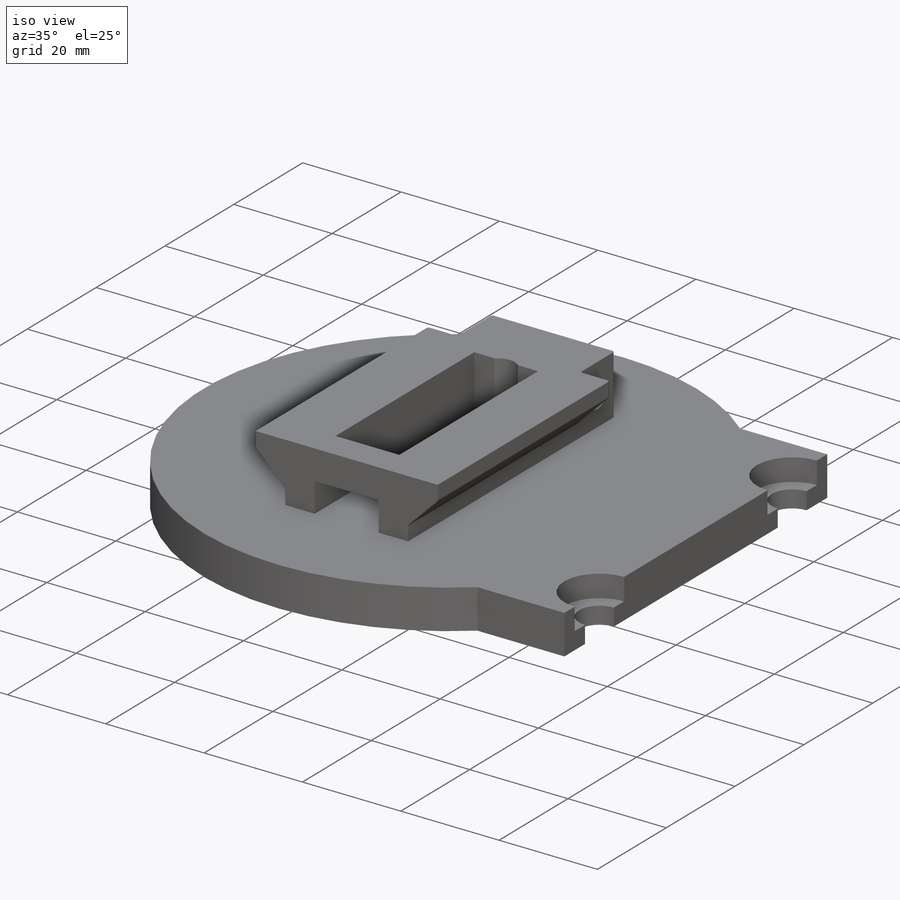
[diagram: iso view]
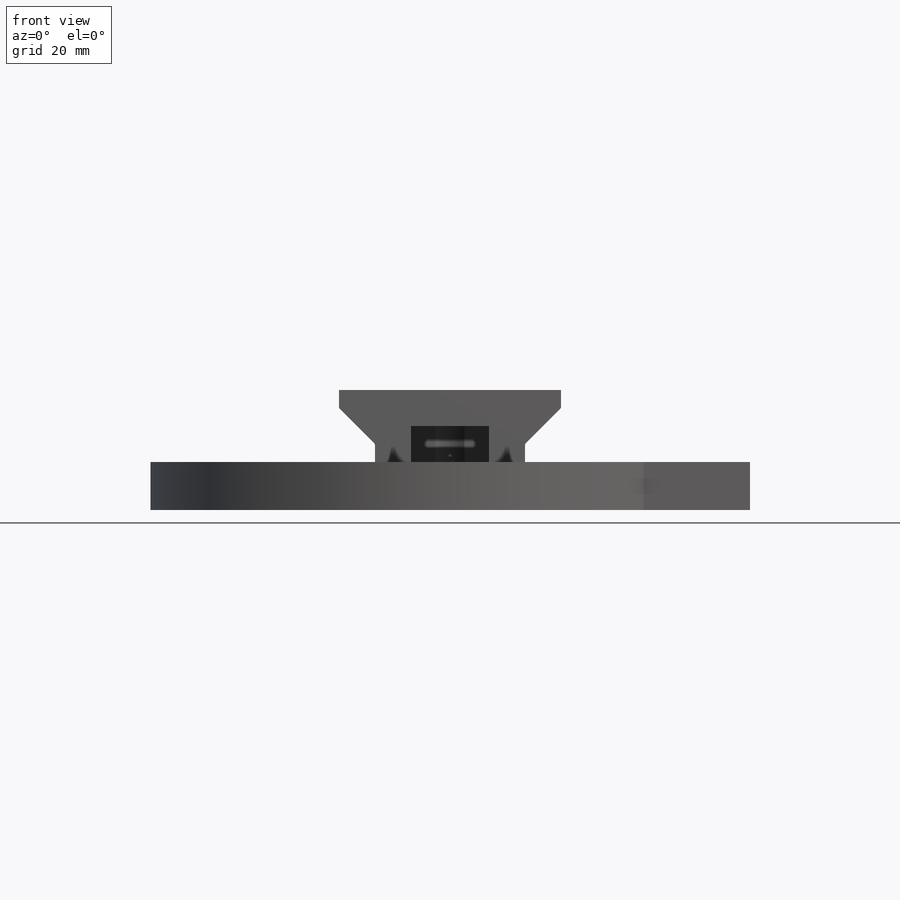
[diagram: front view]
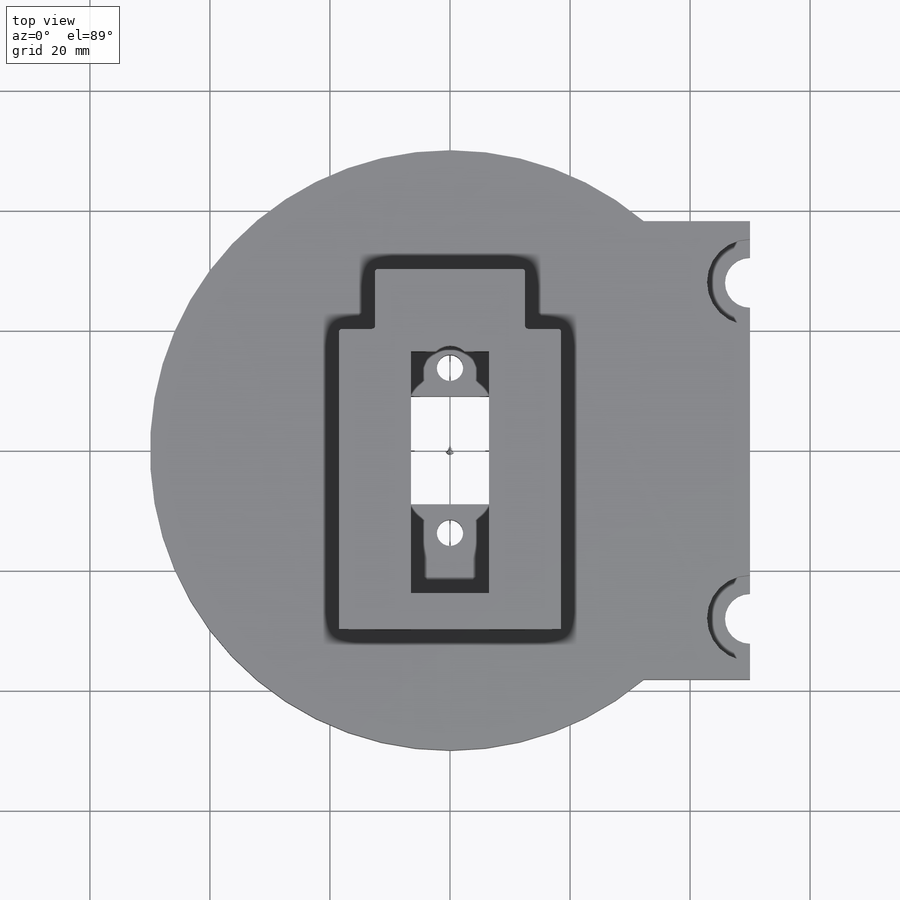
[diagram: top view]
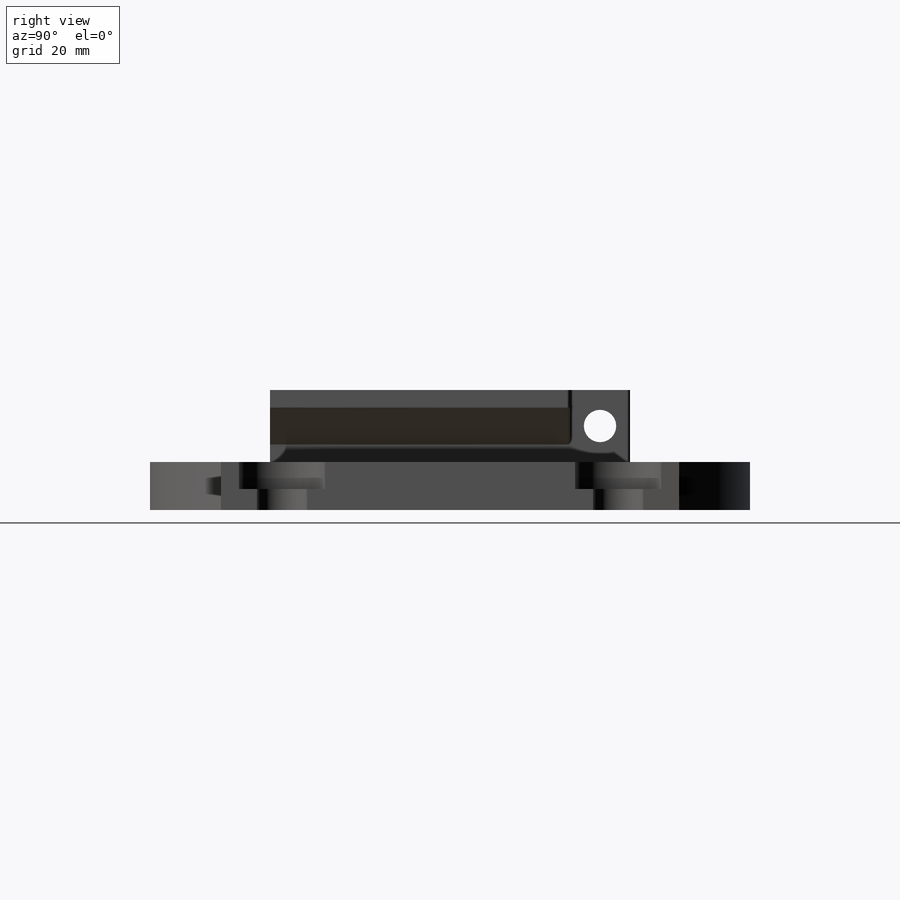
[diagram: right view]
SOLIDWORKS PART (.sldprt)
format: sldprt  version: not decoded by parser v0  size: 513,024 bytes
history: native  units: mm
features: sketch x13, cut_extrude x5, extrude x2, material x1, hole x1, fillet x1 + 1 further entry (+17 scaffold rows collapsed; 3 parser-record rows omitted)
feature tree (44):
  scaffold x17  (default folders/planes/origin — collapsed)
  material  "ABS"
  sketch  "Sketch1-dovetail_male"  dims[c1.D1=10.0mm c1.D2=~6.409122mm c2.D2=45.0deg c2.D3=3.0mm c2.D4=~14.511515mm c2.D1=12.0mm c3.D2=3.0mm c3.D3=~5.973698mm c4.D3=45.0deg c4.D4=25.0mm]
  sketch  "Sketch9-dovetail_male"  dims[c1.D1=12.0mm c1.D2=6.0mm c2.D1=~16.178239mm]
  sketch  "Sketch10-dovetail_male"  dims[D1=~2.410913mm]
  sketch  "Sketch11-dovetail_male"  dims[c1.D1=~30.096908mm c1.D2=~14.271345mm c2.D1=6.0mm c2.D2=6.0mm c2.D3=6.0mm]
  "dovetail_male"
  parser-record x3  (decoder bookkeeping rows leaked as tree rows — omitted from the tree; the rows remain in map.json)
  sketch  "Sketch5"  dims[c1.D1=~2.690301mm c1.D4=4.175mm c1.D5=50.0mm c1.D6=1.0mm c2.D1=13.75mm c2.D2=50.0mm c2.D3=28.0mm c2.D5=6.0mm c3.D1=~55.063801mm c3.D6=27.5mm]
  extrude  "Baxter Wrist Body"  Depth=3.5mm
  hole  "Tap Drill for #8 Helicoil1"  Diameter=4.3942mm Depth=10mm
  sketch  "Sketch7"
  sketch  "Sketch6"  dims[hole-wizard template sketch: 46 standard entries collapsed; hole parameters kept: c15.Hole Dia.=4.3942mm c15.Hole Depth=10.0mm c15.D3=~14.816244mm c15.Drill Angle=118.0deg]
  sketch  "Sketch8"  dims[c1.D1=~14.26503mm c1.D2=13.0mm c2.D1=18.0mm]
  cut_extrude  "Wire Clearance 1"  [1 undecoded]
  sketch  "Sketch9"  dims[D1=7.0mm]
  cut_extrude  "Bolt Head Clearance"  [1 undecoded]
  sketch  "Sketch10"  dims[c1.D1=~3.84959mm c1.D2=~8.518115mm c2.D1=6.0mm]
  cut_extrude  "Wire Clearance 2"  [1 undecoded]
  sketch  "Sketch11"  dims[D1=0.0mm D2=0.0mm]
  extrude  "Base Extension"  Depth=4.5mm
  sketch  "Sketch12"  dims[D1=3.0mm]
  cut_extrude  "Mounting Bolt Clearance"  Depth=4.5mm
  sketch  "Sketch13"  dims[c1.D2=5.0mm c1.D3=7.5mm c2.D2=5.0mm c2.D1=7.5mm]
  cut_extrude  "Mass Reduction"  Depth=3mm
  fillet  "Contouring"  Radius=5mm
decode coverage: 18 of 22 modeling features carry decoded parameters; 1 rows unclassified (native names shown)
note: ~ marks probable driven/reference dimensions
note: 3 parameter values undecoded
summary: no parameter record found for 3 features
note: suppression state not decoded; provenance and decode notes live in map.json
